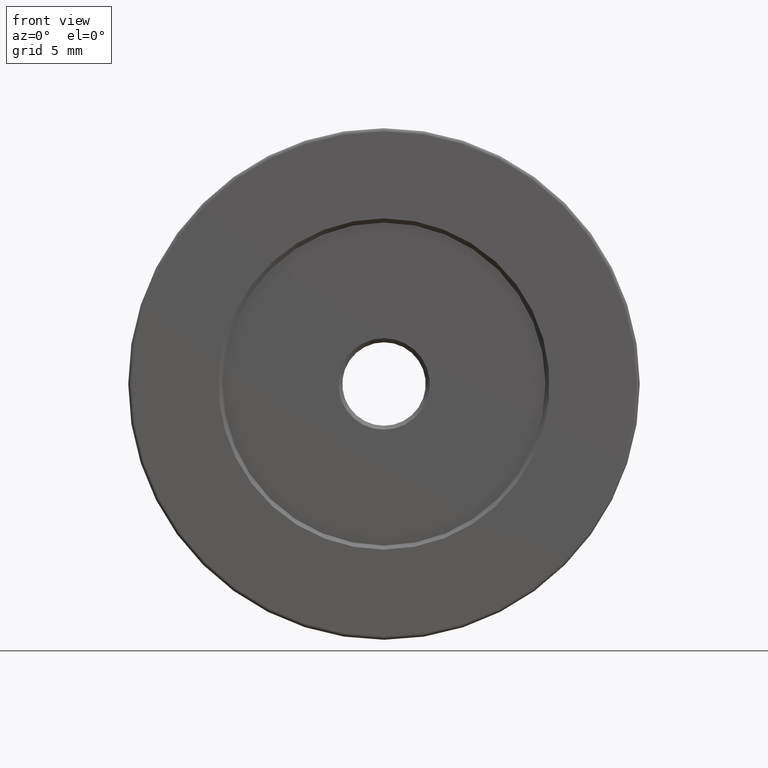
[diagram: clean part render]
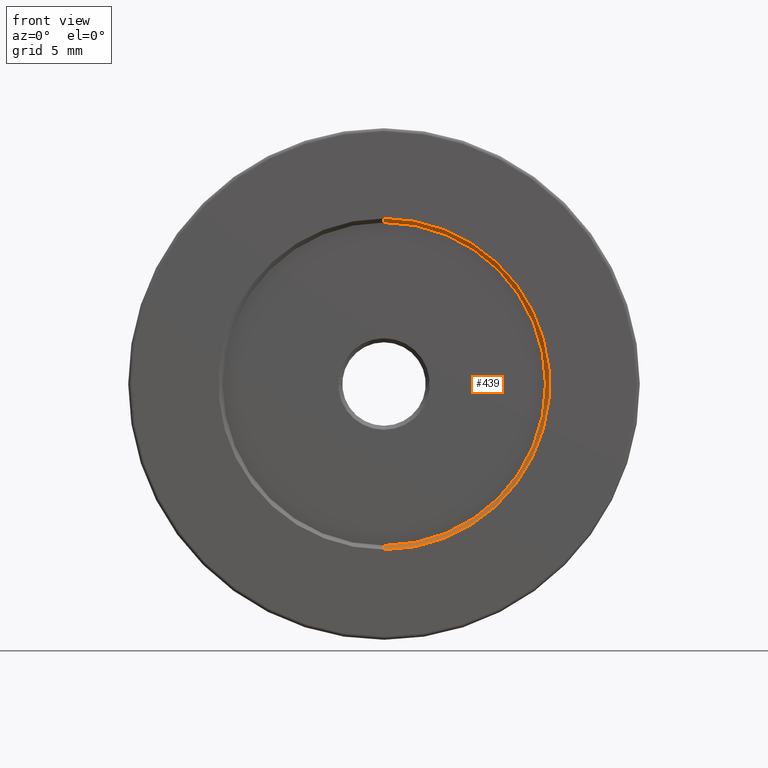
[diagram: same view with one face highlighted and labeled with its STEP entity id]
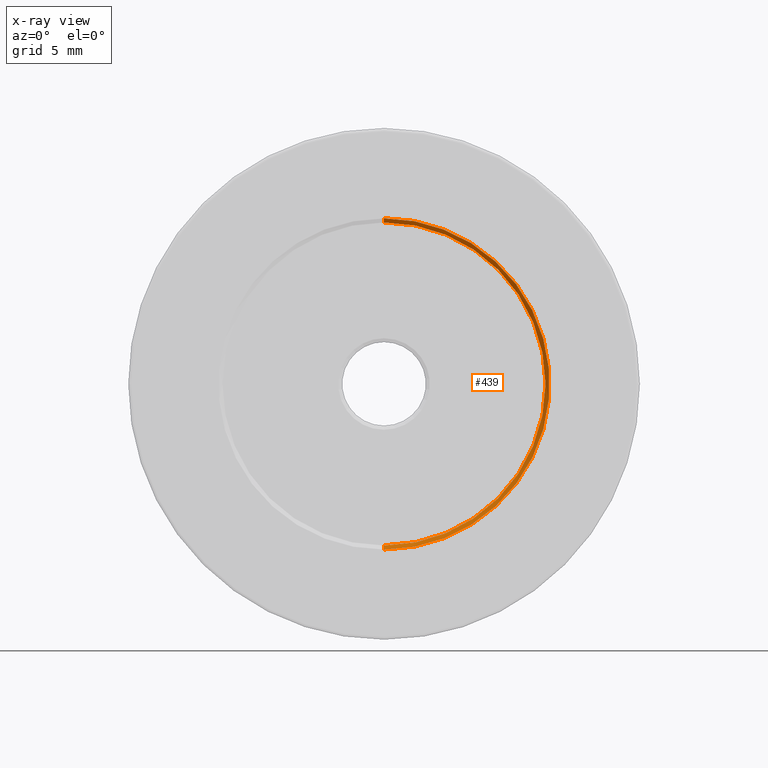
[diagram: x-ray of the same camera — body ghosted, the highlighted face saturated]
A machine part, front view. The second image highlights one B-rep face of the part: STEP entity #439.
The next image is the same camera in x-ray: the body ghosted, the highlighted face saturated — about 0% of this face is hidden behind the body in this view.
In plain terms, the highlighted conical surface has half-angle 45 deg.
Its self-contained STEP definition (entity closure, byte-faithful):
#8 = AXIS2_PLACEMENT_3D ( 'NONE', #80, #405, #69 ) ;
#25 = AXIS2_PLACEMENT_3D ( 'NONE', #163, #355, #302 ) ;
#27 = DIRECTION ( 'NONE',  ( -0.000000000000000000, -1.000000000000000000, -0.000000000000000000 ) ) ;
#67 = CARTESIAN_POINT ( 'NONE',  ( -7.546808913101046734, -6.893595127302727832, 50.29999999999998295 ) ) ;
#69 = DIRECTION ( 'NONE',  ( 0.000000000000000000, 0.000000000000000000, 1.000000000000000000 ) ) ;
#79 = ORIENTED_EDGE ( 'NONE', *, *, #172, .T. ) ;
#80 = CARTESIAN_POINT ( 'NONE',  ( -7.546808913101048510, -6.893595127302727832, 38.00000000000000000 ) ) ;
#114 = EDGE_LOOP ( 'NONE', ( #221, #603, #79, #129 ) ) ;
#126 = CARTESIAN_POINT ( 'NONE',  ( -7.546808913101046734, -6.893595127302727832, 50.29999999999998295 ) ) ;
#129 = ORIENTED_EDGE ( 'NONE', *, *, #499, .F. ) ;
#163 = CARTESIAN_POINT ( 'NONE',  ( -7.546808913101048510, -6.593595127302728010, 38.00000000000000000 ) ) ;
#172 = EDGE_CURVE ( 'NONE', #253, #509, #277, .T. ) ;
#176 = AXIS2_PLACEMENT_3D ( 'NONE', #540, #27, #596 ) ;
#203 = CARTESIAN_POINT ( 'NONE',  ( -7.546808913101048510, -6.593595127302728010, 25.99999999999999645 ) ) ;
#219 = VECTOR ( 'NONE', #411, 1000.000000000000000 ) ;
#221 = ORIENTED_EDGE ( 'NONE', *, *, #289, .F. ) ;
#253 = VERTEX_POINT ( 'NONE', #203 ) ;
#277 = LINE ( 'NONE', #516, #219 ) ;
#289 = EDGE_CURVE ( 'NONE', #469, #447, #335, .T. ) ;
#290 = DIRECTION ( 'NONE',  ( 8.659560562354809599E-17, -0.7071067811865577868, 0.7071067811865373587 ) ) ;
#302 = DIRECTION ( 'NONE',  ( 0.000000000000000000, 0.000000000000000000, 1.000000000000000000 ) ) ;
#316 = CARTESIAN_POINT ( 'NONE',  ( -7.546808913101046734, -6.593595127302728010, 50.00000000000000000 ) ) ;
#335 = LINE ( 'NONE', #67, #568 ) ;
#345 = CIRCLE ( 'NONE', #25, 12.00000000000000355 ) ;
#355 = DIRECTION ( 'NONE',  ( -0.000000000000000000, 1.000000000000000000, -0.000000000000000000 ) ) ;
#392 = FACE_OUTER_BOUND ( 'NONE', #114, .T. ) ;
#405 = DIRECTION ( 'NONE',  ( 0.000000000000000000, 1.000000000000000000, 0.000000000000000000 ) ) ;
#411 = DIRECTION ( 'NONE',  ( 0.000000000000000000, -0.7071067811865577868, -0.7071067811865373587 ) ) ;
#439 = ADVANCED_FACE ( 'NONE', ( #392 ), #598, .F. ) ;
#447 = VERTEX_POINT ( 'NONE', #126 ) ;
#452 = EDGE_CURVE ( 'NONE', #469, #253, #345, .T. ) ;
#469 = VERTEX_POINT ( 'NONE', #316 ) ;
#499 = EDGE_CURVE ( 'NONE', #447, #509, #535, .T. ) ;
#509 = VERTEX_POINT ( 'NONE', #593 ) ;
#516 = CARTESIAN_POINT ( 'NONE',  ( -7.546808913101048510, -6.893595127302727832, 25.70000000000001350 ) ) ;
#535 = CIRCLE ( 'NONE', #8, 12.29999999999998472 ) ;
#540 = CARTESIAN_POINT ( 'NONE',  ( -7.546808913101048510, -6.893595127302727832, 38.00000000000000000 ) ) ;
#568 = VECTOR ( 'NONE', #290, 1000.000000000000000 ) ;
#593 = CARTESIAN_POINT ( 'NONE',  ( -7.546808913101048510, -6.893595127302727832, 25.70000000000001350 ) ) ;
#596 = DIRECTION ( 'NONE',  ( 0.000000000000000000, 0.000000000000000000, -1.000000000000000000 ) ) ;
#598 = CONICAL_SURFACE ( 'NONE', #176, 12.29999999999998472, 0.7853981633974338461 ) ;
#603 = ORIENTED_EDGE ( 'NONE', *, *, #452, .T. ) ;